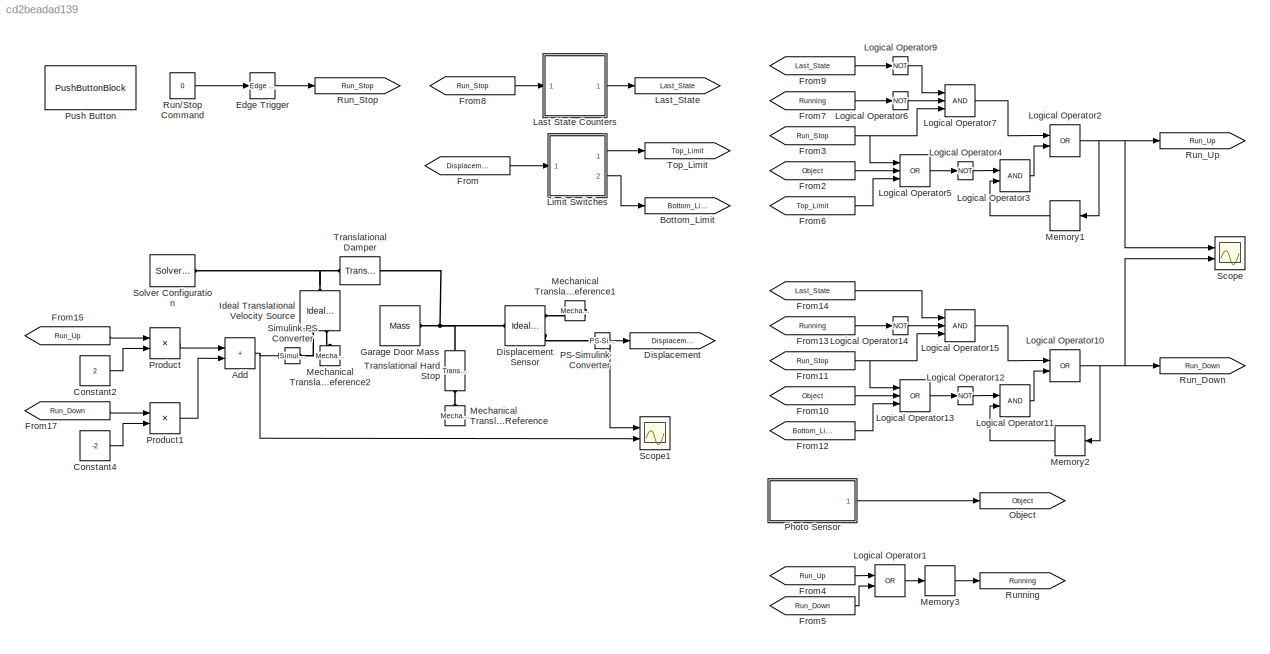
MODEL slx_cd2beadad139
KIND model
CONFIG AbsTol = auto
CONFIG EnableMultiTasking = off
CONFIG FixedStep = auto
CONFIG MaxStep = auto
CONFIG MinStep = auto
CONFIG RelTol = 1e-3
CONFIG SampleTimeConstraint = Unconstrained
CONFIG SolverName = VariableStepAuto
CONFIG StartTime = 0.0
CONFIG StopTime = 50
BLOCK [Sum] Add
  IconShape = rectangular
  Ports = [2, 1]
BLOCK [Goto] Bottom_Limit
  GotoTag = Bottom_Limit
BLOCK [Constant] Constant2
  Value = 2
BLOCK [Constant] Constant4
  Value = -2
BLOCK [Goto] Displacement
  GotoTag = Displacement
BLOCK [Reference] Displacement Sensor  REF=fl_lib/Mechanical/Mechanical Sensors/Ideal Translational
Motion Sensor
  Ports = [0, 0, 0, 0, 0, 1, 3]
  SourceBlock = fl_lib/Mechanical/Mechanical Sensors/Ideal Translational\nMotion Sensor
  SourceProductBaseCode = SS
  SourceType = Ideal Translational\nMotion Sensor
BLOCK [Reference] Edge Trigger  REF=powerlib_meascontrol/Logic/Edge Detector
  Ports = [1, 1]
  SourceBlock = powerlib_meascontrol/Logic/Edge Detector
  SourceProductBaseCode = PS
  SourceType = Edge Detector
BLOCK [From] From
  GotoTag = Displacement
BLOCK [From] From10
  GotoTag = Object
BLOCK [From] From11
  GotoTag = Run_Stop
BLOCK [From] From12
  GotoTag = Bottom_Limit
BLOCK [From] From13
  GotoTag = Running
BLOCK [From] From14
  GotoTag = Last_State
BLOCK [From] From15
  GotoTag = Run_Up
BLOCK [From] From17
  GotoTag = Run_Down
BLOCK [From] From2
  GotoTag = Object
BLOCK [From] From3
  GotoTag = Run_Stop
BLOCK [From] From4
  GotoTag = Run_Up
BLOCK [From] From5
  GotoTag = Run_Down
BLOCK [From] From6
  GotoTag = Top_Limit
BLOCK [From] From7
  GotoTag = Running
BLOCK [From] From8
  GotoTag = Run_Stop
BLOCK [From] From9
  GotoTag = Last_State
BLOCK [Reference] Garage Door Mass  REF=fl_lib/Mechanical/Translational
Elements/Mass
  Ports = [0, 0, 0, 0, 0, 1]
  SourceBlock = fl_lib/Mechanical/Translational\nElements/Mass
  SourceProductBaseCode = SS
  SourceType = Mass
BLOCK [Reference] Ideal Translational Velocity Source  REF=fl_lib/Mechanical/Mechanical Sources/Ideal Translational
Velocity Source
  NameLocation = right
  Ports = [0, 0, 0, 0, 0, 1, 2]
  SourceBlock = fl_lib/Mechanical/Mechanical Sources/Ideal Translational\nVelocity Source
  SourceProductBaseCode = SS
  SourceType = Ideal Translational\nVelocity Source
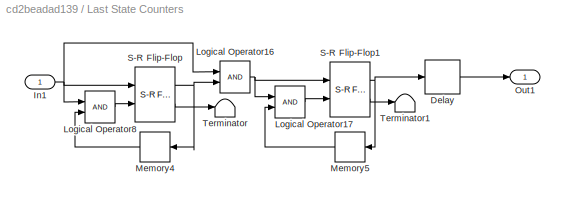
BLOCK [SubSystem] Last State Counters
  Ports = [1, 1]
  RequestExecContextInheritance = off
BLOCK [Delay] Last State Counters/Delay
  DelayLength = 1
  InitialCondition = 0
  InputPortMap = u0
  Ports = [1, 1]
BLOCK [Inport] Last State Counters/In1
BLOCK [Logic] Last State Counters/Logical Operator16
  AllPortsSameDT = off
  IconShape = distinctive
  OutDataTypeStr = boolean
  Ports = [2, 1]
BLOCK [Logic] Last State Counters/Logical Operator17
  AllPortsSameDT = off
  IconShape = distinctive
  OutDataTypeStr = boolean
  Ports = [2, 1]
BLOCK [Logic] Last State Counters/Logical Operator8
  AllPortsSameDT = off
  IconShape = distinctive
  OutDataTypeStr = boolean
  Ports = [2, 1]
BLOCK [Memory] Last State Counters/Memory4
  InheritSampleTime = on
  NameLocation = top
BLOCK [Memory] Last State Counters/Memory5
  InheritSampleTime = on
  NameLocation = top
BLOCK [Outport] Last State Counters/Out1
BLOCK [Reference] Last State Counters/S-R Flip-Flop  REF=simulink_extras/Flip Flops/S-R
Flip-Flop
  Ports = [2, 2]
  SourceBlock = simulink_extras/Flip Flops/S-R\nFlip-Flop
  SourceProductBaseCode = SL
  SourceType = SRFlipFlop
BLOCK [Reference] Last State Counters/S-R Flip-Flop1  REF=simulink_extras/Flip Flops/S-R
Flip-Flop
  Ports = [2, 2]
  SourceBlock = simulink_extras/Flip Flops/S-R\nFlip-Flop
  SourceProductBaseCode = SL
  SourceType = SRFlipFlop
BLOCK [Terminator] Last State Counters/Terminator
BLOCK [Terminator] Last State Counters/Terminator1
BLOCK [Goto] Last_State
  GotoTag = Last_State
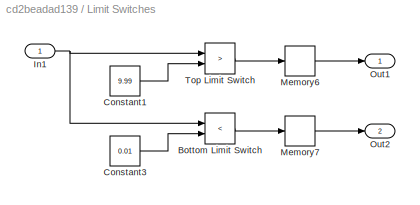
BLOCK [SubSystem] Limit Switches
  Ports = [1, 2]
  RequestExecContextInheritance = off
BLOCK [RelationalOperator] Limit Switches/Bottom Limit Switch
  InputSameDT = off
  Operator = <
  OutDataTypeStr = boolean
  Ports = [2, 1]
  RndMeth = Simplest
BLOCK [Constant] Limit Switches/Constant1
  Value = 9.99
BLOCK [Constant] Limit Switches/Constant3
  Value = 0.01
BLOCK [Inport] Limit Switches/In1
BLOCK [Memory] Limit Switches/Memory6
  InheritSampleTime = on
BLOCK [Memory] Limit Switches/Memory7
  InheritSampleTime = on
BLOCK [Outport] Limit Switches/Out1
BLOCK [Outport] Limit Switches/Out2
  Port = 2
BLOCK [RelationalOperator] Limit Switches/Top Limit Switch
  InputSameDT = off
  Operator = >
  OutDataTypeStr = boolean
  Ports = [2, 1]
  RndMeth = Simplest
BLOCK [Logic] Logical Operator1
  AllPortsSameDT = off
  IconShape = distinctive
  Operator = OR
  OutDataTypeStr = boolean
  Ports = [2, 1]
BLOCK [Logic] Logical Operator10
  AllPortsSameDT = off
  IconShape = distinctive
  Operator = OR
  OutDataTypeStr = boolean
  Ports = [2, 1]
BLOCK [Logic] Logical Operator11
  AllPortsSameDT = off
  IconShape = distinctive
  OutDataTypeStr = boolean
  Ports = [2, 1]
BLOCK [Logic] Logical Operator12
  AllPortsSameDT = off
  IconShape = distinctive
  Operator = NOT
  OutDataTypeStr = boolean
  Ports = [1, 1]
BLOCK [Logic] Logical Operator13
  AllPortsSameDT = off
  IconShape = distinctive
  Inputs = 3
  Operator = OR
  OutDataTypeStr = boolean
  Ports = [3, 1]
BLOCK [Logic] Logical Operator14
  AllPortsSameDT = off
  IconShape = distinctive
  Operator = NOT
  OutDataTypeStr = boolean
  Ports = [1, 1]
BLOCK [Logic] Logical Operator15
  AllPortsSameDT = off
  IconShape = distinctive
  Inputs = 3
  OutDataTypeStr = boolean
  Ports = [3, 1]
BLOCK [Logic] Logical Operator2
  AllPortsSameDT = off
  IconShape = distinctive
  Operator = OR
  OutDataTypeStr = boolean
  Ports = [2, 1]
BLOCK [Logic] Logical Operator3
  AllPortsSameDT = off
  IconShape = distinctive
  OutDataTypeStr = boolean
  Ports = [2, 1]
BLOCK [Logic] Logical Operator4
  AllPortsSameDT = off
  IconShape = distinctive
  Operator = NOT
  OutDataTypeStr = boolean
  Ports = [1, 1]
BLOCK [Logic] Logical Operator5
  AllPortsSameDT = off
  IconShape = distinctive
  Inputs = 3
  Operator = OR
  OutDataTypeStr = boolean
  Ports = [3, 1]
BLOCK [Logic] Logical Operator6
  AllPortsSameDT = off
  IconShape = distinctive
  Operator = NOT
  OutDataTypeStr = boolean
  Ports = [1, 1]
BLOCK [Logic] Logical Operator7
  AllPortsSameDT = off
  IconShape = distinctive
  Inputs = 3
  OutDataTypeStr = boolean
  Ports = [3, 1]
BLOCK [Logic] Logical Operator9
  AllPortsSameDT = off
  IconShape = distinctive
  Operator = NOT
  OutDataTypeStr = boolean
  Ports = [1, 1]
BLOCK [Reference] Mechanical Translational Reference  REF=fl_lib/Mechanical/Translational
Elements/Mechanical
Translational
Reference
  NameLocation = right
  Ports = [0, 0, 0, 0, 0, 1]
  SourceBlock = fl_lib/Mechanical/Translational\nElements/Mechanical\nTranslational\nReference
  SourceProductBaseCode = SS
  SourceType = Mechanical\nTranslational\nReference
BLOCK [Reference] Mechanical Translational Reference1  REF=fl_lib/Mechanical/Translational
Elements/Mechanical
Translational
Reference
  NameLocation = top
  Ports = [0, 0, 0, 0, 0, 1]
  SourceBlock = fl_lib/Mechanical/Translational\nElements/Mechanical\nTranslational\nReference
  SourceProductBaseCode = SS
  SourceType = Mechanical\nTranslational\nReference
BLOCK [Reference] Mechanical Translational Reference2  REF=fl_lib/Mechanical/Translational
Elements/Mechanical
Translational
Reference
  NameLocation = right
  Ports = [0, 0, 0, 0, 0, 1]
  SourceBlock = fl_lib/Mechanical/Translational\nElements/Mechanical\nTranslational\nReference
  SourceProductBaseCode = SS
  SourceType = Mechanical\nTranslational\nReference
BLOCK [Memory] Memory1
  NameLocation = top
BLOCK [Memory] Memory2
  NameLocation = top
BLOCK [Memory] Memory3
  InheritSampleTime = on
BLOCK [Goto] Object
  GotoTag = Object
BLOCK [Reference] PS-Simulink Converter  REF=nesl_utility/PS-Simulink
Converter
  Ports = [0, 1, 0, 0, 0, 1]
  SourceBlock = nesl_utility/PS-Simulink\nConverter
  SourceProductBaseCode = SS
  SourceType = PS-Simulink\nConverter
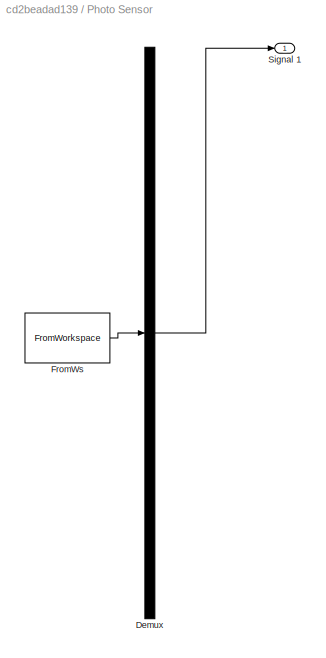
BLOCK [SubSystem] Photo Sensor
  ClipboardFcn = sigbuilder_block('clipboard');
  CloseFcn = sigbuilder_block('close');
  ContinueFcn = sigbuilder_block('continue');
  CopyFcn = sigbuilder_block('copy');
  DeleteFcn = sigbuilder_block('delete');
  LoadFcn = sigbuilder_block('load',[273.667 100 580 400 ]);
  MaskHideContents = on
  ModelCloseFcn = sigbuilder_block('modelClose');
  NameChangeFcn = sigbuilder_block('namechange');
  OpenFcn = sigbuilder_block('open',[273.667 100 580 400 ]);
  PauseFcn = sigbuilder_block('pause');
  Ports = [0, 1]
  PreSaveFcn = sigbuilder_block('preSave');
  RequestExecContextInheritance = off
  StartFcn = sigbuilder_block('start');
  StopFcn = sigbuilder_block('stop');
  Tag = STV Subsys
BLOCK [Demux] Photo Sensor/Demux
  DisplayOption = none
  Outputs = 1
  Ports = [1, 1]
  Tag = STV Demux
BLOCK [FromWorkspace] Photo Sensor/FromWs
  Tag = STV FromWs
  VariableName = tuvar
BLOCK [Outport] Photo Sensor/Signal 1
  Tag = STV Outport
BLOCK [Product] Product
  Ports = [2, 1]
BLOCK [Product] Product1
  Ports = [2, 1]
BLOCK [PushButtonBlock] Push Button
  ButtonText = Push Button
BLOCK [Constant] Run//Stop Command
  OutDataTypeStr = boolean
  Value = 0
BLOCK [Goto] Run_Down
  GotoTag = Run_Down
BLOCK [Goto] Run_Stop
  GotoTag = Run_Stop
BLOCK [Goto] Run_Up
  GotoTag = Run_Up
BLOCK [Goto] Running
  GotoTag = Running
BLOCK [Scope] Scope
  Floating = off
  NumInputPorts = 2
  Ports = [2]
  ScopeSpecificationString = Simulink.scopes.TimeScopeBlockCfg('CurrentConfiguration', extmgr.ConfigurationSet(extmgr.Configuration('Core','General UI',true),extmgr.Configuration('Core','Source UI',true),extmgr.Configuration('Sources','WiredSimulink',true),extmgr.Configuration('Visuals','Time Domain',true,'SerializedDisplays',{struct('MinYLimReal','-0.125','MaxYLimReal','1.125','YLabelReal','','MinYLimMag','0.00000','MaxYLimM...<+2090ch>
BLOCK [Scope] Scope1
  Floating = off
  NumInputPorts = 2
  Ports = [2]
  ScopeSpecificationString = Simulink.scopes.TimeScopeBlockCfg('CurrentConfiguration', extmgr.ConfigurationSet(extmgr.Configuration('Core','General UI',true),extmgr.Configuration('Core','Source UI',true),extmgr.Configuration('Sources','WiredSimulink',true,'DataLoggingVariableName','ScopeData1'),extmgr.Configuration('Visuals','Time Domain',true,'SerializedDisplays',{struct('MinYLimReal','-1.25197','MaxYLimReal','11.26772','YLa...<+2419ch>
BLOCK [Reference] Simulink-PS Converter  REF=nesl_utility/Simulink-PS
Converter
  Ports = [1, 0, 0, 0, 0, 0, 1]
  SourceBlock = nesl_utility/Simulink-PS\nConverter
  SourceProductBaseCode = SS
  SourceType = Simulink-PS\nConverter
BLOCK [Reference] Solver Configuration  REF=nesl_utility/Solver
Configuration
  Ports = [0, 0, 0, 0, 0, 0, 1]
  SourceBlock = nesl_utility/Solver\nConfiguration
  SourceProductBaseCode = SS
  SourceType = Solver\nConfiguration
BLOCK [Goto] Top_Limit
  GotoTag = Top_Limit
BLOCK [Reference] Translational Damper  REF=fl_lib/Mechanical/Translational
Elements/Translational Damper
  Ports = [0, 0, 0, 0, 0, 1, 1]
  SourceBlock = fl_lib/Mechanical/Translational\nElements/Translational Damper
  SourceProductBaseCode = SS
  SourceType = Translational Damper
BLOCK [Reference] Translational Hard Stop  REF=fl_lib/Mechanical/Translational
Elements/Translational Hard
Stop
  NameLocation = left
  Ports = [0, 0, 0, 0, 0, 1, 1]
  SourceBlock = fl_lib/Mechanical/Translational\nElements/Translational Hard\nStop
  SourceProductBaseCode = SS
  SourceType = Translational Hard\nStop
NET Add:1 -> Scope1:2, Simulink-PS Converter:1
LINE Constant2:1 -> Product:2
LINE Constant4:1 -> Product1:2
LINE Edge Trigger:1 -> Run_Stop:1
LINE From10:1 -> Logical Operator13:2
NET From11:1 -> Logical Operator13:1, Logical Operator15:3
LINE From12:1 -> Logical Operator13:3
LINE From13:1 -> Logical Operator14:1
LINE From14:1 -> Logical Operator15:1
LINE From15:1 -> Product:1
LINE From17:1 -> Product1:1
LINE From2:1 -> Logical Operator5:2
NET From3:1 -> Logical Operator5:1, Logical Operator7:3
LINE From4:1 -> Logical Operator1:1
LINE From5:1 -> Logical Operator1:2
LINE From6:1 -> Logical Operator5:3
LINE From7:1 -> Logical Operator6:1
LINE From8:1 -> Last State Counters:1
LINE From9:1 -> Logical Operator9:1
LINE From:1 -> Limit Switches:1
LINE Last State Counters/Delay:1 -> Last State Counters/Out1:1
NET Last State Counters/In1:1 -> Last State Counters/Logical Operator16:1, Last State Counters/Logical Operator8:1, Last State Counters/S-R Flip-Flop:1
NET Last State Counters/Logical Operator16:1 -> Last State Counters/Logical Operator17:1, Last State Counters/S-R Flip-Flop1:1
LINE Last State Counters/Logical Operator17:1 -> Last State Counters/S-R Flip-Flop1:2
LINE Last State Counters/Logical Operator8:1 -> Last State Counters/S-R Flip-Flop:2
LINE Last State Counters/Memory4:1 -> Last State Counters/Logical Operator8:2
LINE Last State Counters/Memory5:1 -> Last State Counters/Logical Operator17:2
NET Last State Counters/S-R Flip-Flop1:1 -> Last State Counters/Delay:1, Last State Counters/Memory5:1
LINE Last State Counters/S-R Flip-Flop1:2 -> Last State Counters/Terminator1:1
NET Last State Counters/S-R Flip-Flop:1 -> Last State Counters/Logical Operator16:2, Last State Counters/Memory4:1
LINE Last State Counters/S-R Flip-Flop:2 -> Last State Counters/Terminator:1
LINE Last State Counters:1 -> Last_State:1
LINE Limit Switches/Bottom Limit Switch:1 -> Limit Switches/Memory7:1
LINE Limit Switches/Constant1:1 -> Limit Switches/Top Limit Switch:2
LINE Limit Switches/Constant3:1 -> Limit Switches/Bottom Limit Switch:2
NET Limit Switches/In1:1 -> Limit Switches/Bottom Limit Switch:1, Limit Switches/Top Limit Switch:1
LINE Limit Switches/Memory6:1 -> Limit Switches/Out1:1
LINE Limit Switches/Memory7:1 -> Limit Switches/Out2:1
LINE Limit Switches/Top Limit Switch:1 -> Limit Switches/Memory6:1
LINE Limit Switches:1 -> Top_Limit:1
LINE Limit Switches:2 -> Bottom_Limit:1
NET Logical Operator10:1 -> Memory2:1, Run_Down:1, Scope:2
LINE Logical Operator11:1 -> Logical Operator10:2
LINE Logical Operator12:1 -> Logical Operator11:1
LINE Logical Operator13:1 -> Logical Operator12:1
LINE Logical Operator14:1 -> Logical Operator15:2
LINE Logical Operator15:1 -> Logical Operator10:1
LINE Logical Operator1:1 -> Memory3:1
NET Logical Operator2:1 -> Memory1:1, Run_Up:1, Scope:1
LINE Logical Operator3:1 -> Logical Operator2:2
LINE Logical Operator4:1 -> Logical Operator3:1
LINE Logical Operator5:1 -> Logical Operator4:1
LINE Logical Operator6:1 -> Logical Operator7:2
LINE Logical Operator7:1 -> Logical Operator2:1
LINE Logical Operator9:1 -> Logical Operator7:1
LINE Memory1:1 -> Logical Operator3:2
LINE Memory2:1 -> Logical Operator11:2
LINE Memory3:1 -> Running:1
NET PS-Simulink Converter:1 -> Displacement:1, Scope1:1
LINE Photo Sensor:1 -> Object:1
LINE Product1:1 -> Add:2
LINE Product:1 -> Add:1
LINE Run//Stop Command:1 -> Edge Trigger:1
PNET net1: Displacement Sensor:LConn1 -- Garage Door Mass:LConn1 -- Translational Damper:RConn1 -- Translational Hard Stop:LConn1
PLINE Displacement Sensor:RConn1 -- Mechanical Translational Reference1:LConn1
PLINE Displacement Sensor:RConn3 -- PS-Simulink Converter:LConn1
PNET net2: Ideal Translational Velocity Source:LConn1 -- Solver Configuration:RConn1 -- Translational Damper:LConn1
PLINE Ideal Translational Velocity Source:RConn1 -- Simulink-PS Converter:RConn1
PLINE Ideal Translational Velocity Source:RConn2 -- Mechanical Translational Reference2:LConn1
PLINE Mechanical Translational Reference:LConn1 -- Translational Hard Stop:RConn1
note: NET lines group one-source signal fan-out (src -> all destinations, sorted); 1:1 wires keep LINE; PNET lines group multi-terminal physical nets as a canonical sorted terminal list (undirected conserving connections); 2-terminal nets keep the pairwise PLINE form
